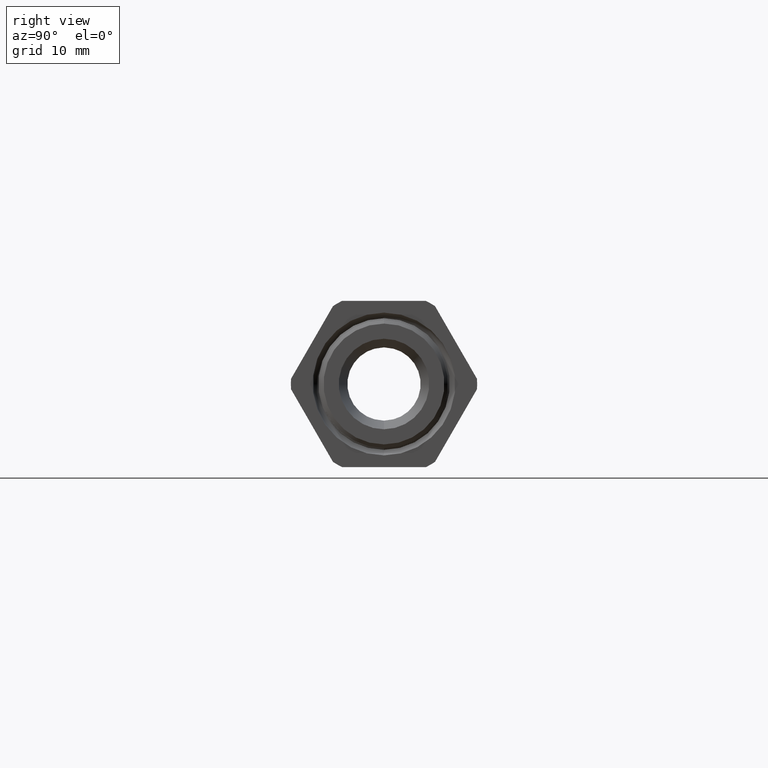
[diagram: clean part render]
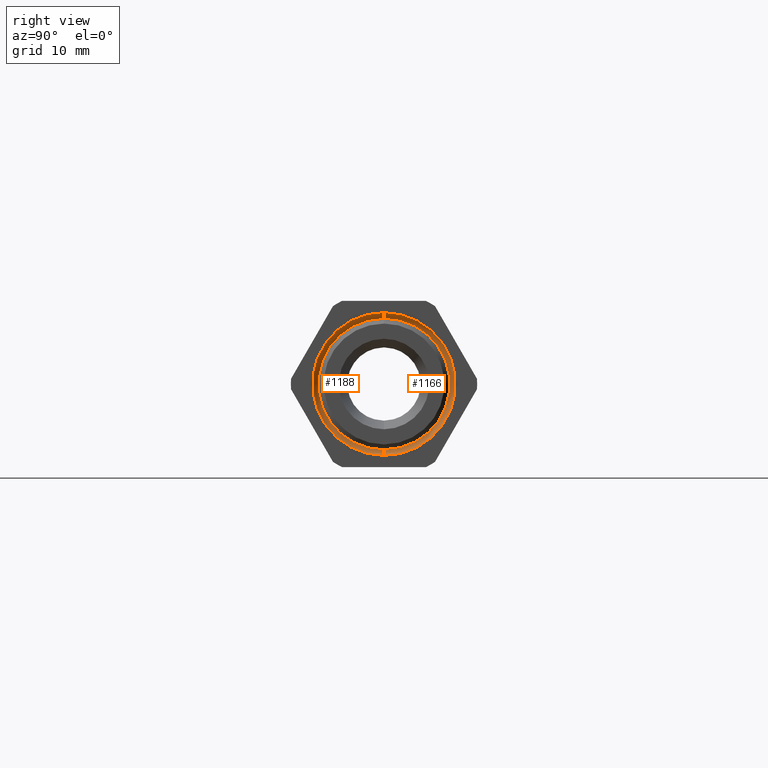
[diagram: same view with one multi-face feature highlighted, each face labeled with its STEP entity id]
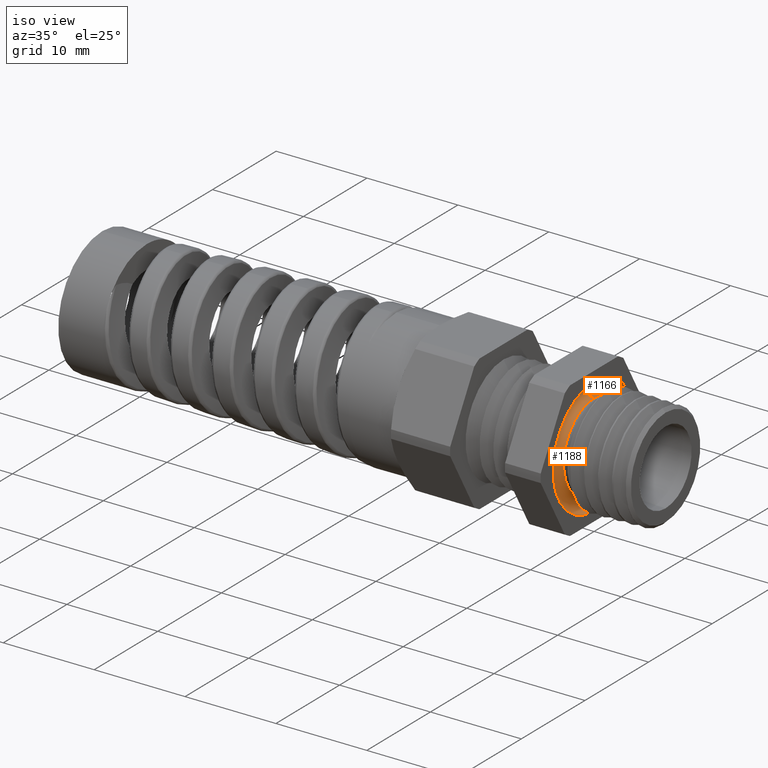
[diagram: same view with one multi-face feature highlighted, each face labeled with its STEP entity id]
A machine part, right view. The highlighted faces form ONE feature: a constant-radius fillet chain: 2 tangent blend faces with common blend radius 0.8255 mm. The faces share edges in the B-rep.
A second angle (iso view) of the same feature is appended — it is thin or edge-on in the first view.
Their STEP definitions:
[1] entity #1188 (Torus):
#1168 = EDGE_CURVE ( 'NONE', #1169, #1170, #7973, .T. ) ;
#1169 = VERTEX_POINT ( 'NONE', #7968 ) ;
#1170 = VERTEX_POINT ( 'NONE', #7967 ) ;
#1173 = VERTEX_POINT ( 'NONE', #8024 ) ;
#1175 = EDGE_CURVE ( 'NONE', #1176, #1173, #8023, .T. ) ;
#1176 = VERTEX_POINT ( 'NONE', #8018 ) ;
#1188 = ADVANCED_FACE ( 'NONE', ( #8057 ), #8056, .F. ) ;
#1189 = EDGE_LOOP ( 'NONE', ( #1190, #1191, #1193, #1194 ) ) ;
#1190 = ORIENTED_EDGE ( 'NONE', *, *, #1175, .T. ) ;
#1191 = ORIENTED_EDGE ( 'NONE', *, *, #1192, .T. ) ;
#1192 = EDGE_CURVE ( 'NONE', #1173, #1170, #8051, .T. ) ;
#1193 = ORIENTED_EDGE ( 'NONE', *, *, #1168, .F. ) ;
#1194 = ORIENTED_EDGE ( 'NONE', *, *, #1195, .F. ) ;
#1195 = EDGE_CURVE ( 'NONE', #1176, #1169, #8046, .T. ) ;
#7967 = CARTESIAN_POINT ( 'NONE',  ( 3.980102097228896800E-018, 0.0000000000000000000, 0.1883542800000000700 ) ) ;
#7968 = CARTESIAN_POINT ( 'NONE',  ( 3.487598135429819200E-017, 0.0000000000000000000, 0.2533542799999999300 ) ) ;
#7969 = DIRECTION ( 'NONE',  ( 0.0000000000000000000, 0.0000000000000000000, -1.000000000000000000 ) ) ;
#7970 = DIRECTION ( 'NONE',  ( 0.0000000000000000000, -1.000000000000000000, 0.0000000000000000000 ) ) ;
#7971 = CARTESIAN_POINT ( 'NONE',  ( 0.0000000000000000000, 0.0000000000000000000, 0.2208542800000000100 ) ) ;
#7972 = AXIS2_PLACEMENT_3D ( 'NONE', #7971, #7970, #7969 ) ;
#7973 = CIRCLE ( 'NONE', #7972, 0.03249999999999995900 ) ;
#8018 = CARTESIAN_POINT ( 'NONE',  ( 3.487598135429819200E-017, 3.102695080522822500E-017, -0.2533542799999999300 ) ) ;
#8019 = DIRECTION ( 'NONE',  ( 0.0000000000000000000, -1.224646799147353700E-016, 1.000000000000000000 ) ) ;
#8020 = DIRECTION ( 'NONE',  ( 0.0000000000000000000, 1.000000000000000000, 1.224646799147353200E-016 ) ) ;
#8021 = CARTESIAN_POINT ( 'NONE',  ( 0.0000000000000000000, 2.704684870799933300E-017, -0.2208542800000000100 ) ) ;
#8022 = AXIS2_PLACEMENT_3D ( 'NONE', #8021, #8020, #8019 ) ;
#8023 = CIRCLE ( 'NONE', #8022, 0.03249999999999995900 ) ;
#8024 = CARTESIAN_POINT ( 'NONE',  ( 3.980102097228896800E-018, 2.306674661077043400E-017, -0.1883542800000000700 ) ) ;
#8042 = DIRECTION ( 'NONE',  ( 0.0000000000000000000, 0.0000000000000000000, 1.000000000000000000 ) ) ;
#8043 = DIRECTION ( 'NONE',  ( -1.000000000000000000, 0.0000000000000000000, 0.0000000000000000000 ) ) ;
#8044 = CARTESIAN_POINT ( 'NONE',  ( 3.487598135429819200E-017, 0.0000000000000000000, 0.0000000000000000000 ) ) ;
#8045 = AXIS2_PLACEMENT_3D ( 'NONE', #8044, #8043, #8042 ) ;
#8046 = CIRCLE ( 'NONE', #8045, 0.2533542799999999900 ) ;
#8047 = DIRECTION ( 'NONE',  ( 0.0000000000000000000, 0.0000000000000000000, 1.000000000000000000 ) ) ;
#8048 = DIRECTION ( 'NONE',  ( -1.000000000000000000, 0.0000000000000000000, 0.0000000000000000000 ) ) ;
#8049 = CARTESIAN_POINT ( 'NONE',  ( 3.980102097228894500E-018, 0.0000000000000000000, 0.0000000000000000000 ) ) ;
#8050 = AXIS2_PLACEMENT_3D ( 'NONE', #8049, #8048, #8047 ) ;
#8051 = CIRCLE ( 'NONE', #8050, 0.1883542800000000700 ) ;
#8052 = DIRECTION ( 'NONE',  ( 0.0000000000000000000, 0.0000000000000000000, 1.000000000000000000 ) ) ;
#8053 = DIRECTION ( 'NONE',  ( -1.000000000000000000, 0.0000000000000000000, 0.0000000000000000000 ) ) ;
#8054 = CARTESIAN_POINT ( 'NONE',  ( 0.0000000000000000000, 0.0000000000000000000, 0.0000000000000000000 ) ) ;
#8055 = AXIS2_PLACEMENT_3D ( 'NONE', #8054, #8053, #8052 ) ;
#8056 = TOROIDAL_SURFACE ( 'NONE', #8055, 0.2208542800000000100, 0.03249999999999997300 ) ;
#8057 = FACE_OUTER_BOUND ( 'NONE', #1189, .T. ) ;
[2] entity #1166 (Torus):
#1164 = EDGE_LOOP ( 'NONE', ( #1167, #1171, #1174, #1186 ) ) ;
#1166 = ADVANCED_FACE ( 'NONE', ( #7979 ), #7977, .F. ) ;
#1167 = ORIENTED_EDGE ( 'NONE', *, *, #1168, .T. ) ;
#1168 = EDGE_CURVE ( 'NONE', #1169, #1170, #7973, .T. ) ;
#1169 = VERTEX_POINT ( 'NONE', #7968 ) ;
#1170 = VERTEX_POINT ( 'NONE', #7967 ) ;
#1171 = ORIENTED_EDGE ( 'NONE', *, *, #1172, .T. ) ;
#1172 = EDGE_CURVE ( 'NONE', #1170, #1173, #8029, .T. ) ;
#1173 = VERTEX_POINT ( 'NONE', #8024 ) ;
#1174 = ORIENTED_EDGE ( 'NONE', *, *, #1175, .F. ) ;
#1175 = EDGE_CURVE ( 'NONE', #1176, #1173, #8023, .T. ) ;
#1176 = VERTEX_POINT ( 'NONE', #8018 ) ;
#1186 = ORIENTED_EDGE ( 'NONE', *, *, #1187, .F. ) ;
#1187 = EDGE_CURVE ( 'NONE', #1169, #1176, #8061, .T. ) ;
#7967 = CARTESIAN_POINT ( 'NONE',  ( 3.980102097228896800E-018, 0.0000000000000000000, 0.1883542800000000700 ) ) ;
#7968 = CARTESIAN_POINT ( 'NONE',  ( 3.487598135429819200E-017, 0.0000000000000000000, 0.2533542799999999300 ) ) ;
#7969 = DIRECTION ( 'NONE',  ( 0.0000000000000000000, 0.0000000000000000000, -1.000000000000000000 ) ) ;
#7970 = DIRECTION ( 'NONE',  ( 0.0000000000000000000, -1.000000000000000000, 0.0000000000000000000 ) ) ;
#7971 = CARTESIAN_POINT ( 'NONE',  ( 0.0000000000000000000, 0.0000000000000000000, 0.2208542800000000100 ) ) ;
#7972 = AXIS2_PLACEMENT_3D ( 'NONE', #7971, #7970, #7969 ) ;
#7973 = CIRCLE ( 'NONE', #7972, 0.03249999999999995900 ) ;
#7974 = DIRECTION ( 'NONE',  ( 0.0000000000000000000, 0.0000000000000000000, 1.000000000000000000 ) ) ;
#7975 = DIRECTION ( 'NONE',  ( -1.000000000000000000, 0.0000000000000000000, 0.0000000000000000000 ) ) ;
#7976 = AXIS2_PLACEMENT_3D ( 'NONE', #7978, #7975, #7974 ) ;
#7977 = TOROIDAL_SURFACE ( 'NONE', #7976, 0.2208542800000000100, 0.03249999999999997300 ) ;
#7978 = CARTESIAN_POINT ( 'NONE',  ( 0.0000000000000000000, 0.0000000000000000000, 0.0000000000000000000 ) ) ;
#7979 = FACE_OUTER_BOUND ( 'NONE', #1164, .T. ) ;
#7999 = CARTESIAN_POINT ( 'NONE',  ( 3.487598135429819200E-017, 0.0000000000000000000, 0.0000000000000000000 ) ) ;
#8018 = CARTESIAN_POINT ( 'NONE',  ( 3.487598135429819200E-017, 3.102695080522822500E-017, -0.2533542799999999300 ) ) ;
#8019 = DIRECTION ( 'NONE',  ( 0.0000000000000000000, -1.224646799147353700E-016, 1.000000000000000000 ) ) ;
#8020 = DIRECTION ( 'NONE',  ( 0.0000000000000000000, 1.000000000000000000, 1.224646799147353200E-016 ) ) ;
#8021 = CARTESIAN_POINT ( 'NONE',  ( 0.0000000000000000000, 2.704684870799933300E-017, -0.2208542800000000100 ) ) ;
#8022 = AXIS2_PLACEMENT_3D ( 'NONE', #8021, #8020, #8019 ) ;
#8023 = CIRCLE ( 'NONE', #8022, 0.03249999999999995900 ) ;
#8024 = CARTESIAN_POINT ( 'NONE',  ( 3.980102097228896800E-018, 2.306674661077043400E-017, -0.1883542800000000700 ) ) ;
#8025 = DIRECTION ( 'NONE',  ( 0.0000000000000000000, 0.0000000000000000000, 1.000000000000000000 ) ) ;
#8026 = DIRECTION ( 'NONE',  ( -1.000000000000000000, 0.0000000000000000000, 0.0000000000000000000 ) ) ;
#8027 = CARTESIAN_POINT ( 'NONE',  ( 3.980102097228894500E-018, 0.0000000000000000000, 0.0000000000000000000 ) ) ;
#8028 = AXIS2_PLACEMENT_3D ( 'NONE', #8027, #8026, #8025 ) ;
#8029 = CIRCLE ( 'NONE', #8028, 0.1883542800000000700 ) ;
#8058 = DIRECTION ( 'NONE',  ( 0.0000000000000000000, 0.0000000000000000000, 1.000000000000000000 ) ) ;
#8059 = DIRECTION ( 'NONE',  ( -1.000000000000000000, 0.0000000000000000000, 0.0000000000000000000 ) ) ;
#8060 = AXIS2_PLACEMENT_3D ( 'NONE', #7999, #8059, #8058 ) ;
#8061 = CIRCLE ( 'NONE', #8060, 0.2533542799999999900 ) ;